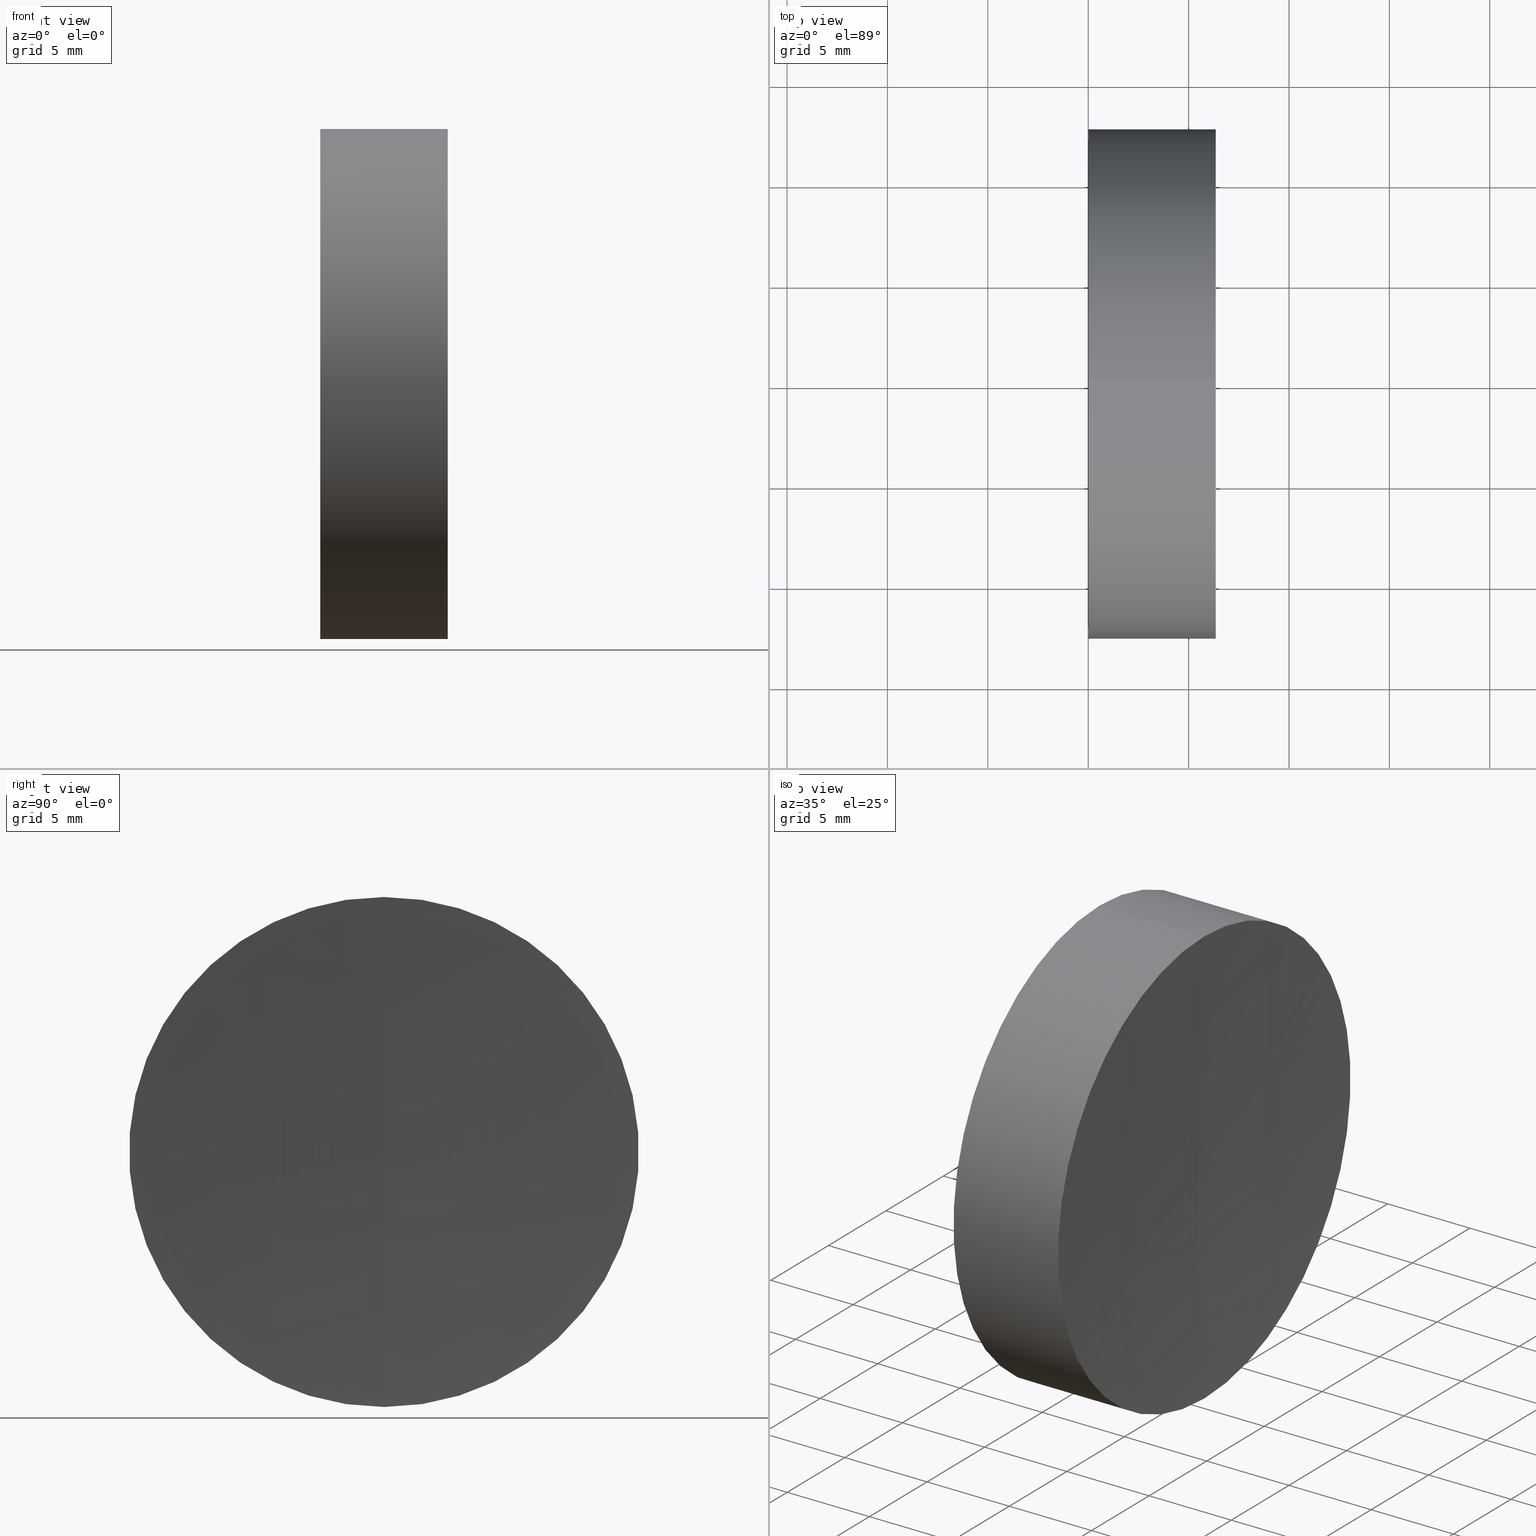
[diagram: canonical four-view strip — front | top / right | iso, engineering-drawing reading convention]
A machine part, canonical four-view strip (front | top / right | iso — engineering-drawing reading convention). The complete STEP part file that produces these views, byte-faithful:
ISO-10303-21;
HEADER;
FILE_DESCRIPTION (( 'STEP AP214' ),
    '1' );
FILE_NAME ('432517.STEP',
    '2019-08-27T01:21:50',
    ( 'user' ),
    ( '΢���й�' ),
    'SwSTEP 2.0',
    'SolidWorks 2016',
    '' );
FILE_SCHEMA (( 'AUTOMOTIVE_DESIGN' ));
ENDSEC;

DATA;
#1 = AXIS2_PLACEMENT_3D ( 'NONE', #150, #90, #9 ) ;
#2 = PRODUCT_DEFINITION ( 'δ֪', '', #55, #92 ) ;
#3 = CARTESIAN_POINT ( 'NONE',  ( 0.0000000000000000000, 0.0000000000000000000, 0.0000000000000000000 ) ) ;
#4 = CYLINDRICAL_SURFACE ( 'NONE', #127, 12.70000000000000300 ) ;
#5 = DIRECTION ( 'NONE',  ( 0.0000000000000000000, 0.0000000000000000000, 1.000000000000000000 ) ) ;
#6 =( NAMED_UNIT ( * ) SI_UNIT ( $, .STERADIAN. ) SOLID_ANGLE_UNIT ( ) );
#7 = ADVANCED_BREP_SHAPE_REPRESENTATION ( '432517', ( #65, #67 ), #130 ) ;
#8 = EDGE_CURVE ( 'NONE', #119, #27, #15, .T. ) ;
#9 = DIRECTION ( 'NONE',  ( 0.0000000000000000000, 0.0000000000000000000, 1.000000000000000000 ) ) ;
#10 = ORIENTED_EDGE ( 'NONE', *, *, #38, .T. ) ;
#11 = SPHERICAL_SURFACE ( 'NONE', #17, 200.0000000000000000 ) ;
#12 = LINE ( 'NONE', #123, #45 ) ;
#13 = EDGE_LOOP ( 'NONE', ( #49, #95, #39, #26 ) ) ;
#14 = FACE_OUTER_BOUND ( 'NONE', #84, .T. ) ;
#15 = CIRCLE ( 'NONE', #144, 200.0000000000000000 ) ;
#16 = EDGE_CURVE ( 'NONE', #64, #119, #147, .T. ) ;
#17 = AXIS2_PLACEMENT_3D ( 'NONE', #44, #85, #5 ) ;
#18 = DIRECTION ( 'NONE',  ( 0.0000000000000000000, 0.0000000000000000000, 1.000000000000000000 ) ) ;
#19 = CARTESIAN_POINT ( 'NONE',  ( 6.353632297579126000, 0.0000000000000000000, 0.0000000000000000000 ) ) ;
#20 = DIRECTION ( 'NONE',  ( -1.000000000000000000, -0.0000000000000000000, -0.0000000000000000000 ) ) ;
#21 = DIRECTION ( 'NONE',  ( 0.0000000000000000000, 0.0000000000000000000, 1.000000000000000000 ) ) ;
#22 =( LENGTH_UNIT ( ) NAMED_UNIT ( * ) SI_UNIT ( .MILLI., .METRE. ) );
#23 = CARTESIAN_POINT ( 'NONE',  ( 0.0000000000000000000, 0.0000000000000000000, 0.0000000000000000000 ) ) ;
#24 = SHAPE_DEFINITION_REPRESENTATION ( #163, #7 ) ;
#25 = EDGE_CURVE ( 'NONE', #64, #114, #41, .T. ) ;
#26 = ORIENTED_EDGE ( 'NONE', *, *, #42, .F. ) ;
#27 = VERTEX_POINT ( 'NONE', #81 ) ;
#28 = PRODUCT_RELATED_PRODUCT_CATEGORY ( 'part', '', ( #53 ) ) ;
#29 = STYLED_ITEM ( 'NONE', ( #135 ), #65 ) ;
#30 = CARTESIAN_POINT ( 'NONE',  ( 6.353632297579126000, 0.0000000000000000000, 0.0000000000000000000 ) ) ;
#31 = DIRECTION ( 'NONE',  ( 0.0000000000000000000, -1.224646799147353200E-016, 1.000000000000000000 ) ) ;
#32 = DIRECTION ( 'NONE',  ( -1.000000000000000000, -0.0000000000000000000, -0.0000000000000000000 ) ) ;
#33 = CARTESIAN_POINT ( 'NONE',  ( 6.353632297579126000, 1.555301434917142400E-015, -12.70000000000003100 ) ) ;
#34 = SURFACE_SIDE_STYLE ('',( #93 ) ) ;
#35 = CARTESIAN_POINT ( 'NONE',  ( 205.9500000000000200, 0.0000000000000000000, 0.0000000000000000000 ) ) ;
#36 = DIRECTION ( 'NONE',  ( 1.000000000000000000, 0.0000000000000000000, 0.0000000000000000000 ) ) ;
#37 = PRESENTATION_LAYER_ASSIGNMENT (  '', '', ( #152 ) ) ;
#38 = EDGE_CURVE ( 'NONE', #119, #64, #153, .T. ) ;
#39 = ORIENTED_EDGE ( 'NONE', *, *, #56, .T. ) ;
#40 = CIRCLE ( 'NONE', #120, 12.69999999999999900 ) ;
#41 = LINE ( 'NONE', #121, #110 ) ;
#42 = EDGE_CURVE ( 'NONE', #114, #97, #79, .T. ) ;
#43 = ORIENTED_EDGE ( 'NONE', *, *, #38, .F. ) ;
#44 = CARTESIAN_POINT ( 'NONE',  ( 205.9500000000000200, 0.0000000000000000000, 0.0000000000000000000 ) ) ;
#45 = VECTOR ( 'NONE', #108, 1000.000000000000000 ) ;
#46 = FILL_AREA_STYLE_COLOUR ( '', #117 ) ;
#47 = DIRECTION ( 'NONE',  ( 0.0000000000000000000, 0.0000000000000000000, 1.000000000000000000 ) ) ;
#48 = APPLICATION_CONTEXT ( 'automotive_design' ) ;
#49 = ORIENTED_EDGE ( 'NONE', *, *, #25, .F. ) ;
#50 = ADVANCED_FACE ( 'NONE', ( #77 ), #4, .T. ) ;
#51 = ORIENTED_EDGE ( 'NONE', *, *, #56, .F. ) ;
#52 = AXIS2_PLACEMENT_3D ( 'NONE', #72, #20, #157 ) ;
#53 = PRODUCT ( '432517', '432517', '', ( #148 ) ) ;
#54 = ORIENTED_EDGE ( 'NONE', *, *, #8, .T. ) ;
#55 = PRODUCT_DEFINITION_FORMATION_WITH_SPECIFIED_SOURCE ( '�κ�', '', #53, .NOT_KNOWN. ) ;
#56 = EDGE_CURVE ( 'NONE', #119, #97, #12, .T. ) ;
#57 = CARTESIAN_POINT ( 'NONE',  ( 0.0000000000000000000, 0.0000000000000000000, 12.69999999999999900 ) ) ;
#58 = ADVANCED_FACE ( 'NONE', ( #104 ), #140, .F. ) ;
#59 = APPLICATION_CONTEXT ( 'automotive_design' ) ;
#60 = APPLICATION_PROTOCOL_DEFINITION ( 'draft international standard', 'automotive_design', 1998, #48 ) ;
#61 = SURFACE_SIDE_STYLE ('',( #91 ) ) ;
#62 = MECHANICAL_DESIGN_GEOMETRIC_PRESENTATION_REPRESENTATION (  '', ( #29 ), #118 ) ;
#63 = AXIS2_PLACEMENT_3D ( 'NONE', #122, #36, #113 ) ;
#64 = VERTEX_POINT ( 'NONE', #33 ) ;
#65 = MANIFOLD_SOLID_BREP ( '��ת1', #105 ) ;
#66 = EDGE_CURVE ( 'NONE', #64, #27, #143, .T. ) ;
#67 = AXIS2_PLACEMENT_3D ( 'NONE', #23, #160, #71 ) ;
#68 = ORIENTED_EDGE ( 'NONE', *, *, #16, .F. ) ;
#69 = CARTESIAN_POINT ( 'NONE',  ( 6.353632297579126000, 0.0000000000000000000, 12.70000000000003100 ) ) ;
#70 = PLANE ( 'NONE',  #63 ) ;
#71 = DIRECTION ( 'NONE',  ( 1.000000000000000000, 0.0000000000000000000, 0.0000000000000000000 ) ) ;
#72 = CARTESIAN_POINT ( 'NONE',  ( 0.0000000000000000000, 0.0000000000000000000, 0.0000000000000000000 ) ) ;
#73 =( NAMED_UNIT ( * ) SI_UNIT ( $, .STERADIAN. ) SOLID_ANGLE_UNIT ( ) );
#74 = FILL_AREA_STYLE_COLOUR ( '', #166 ) ;
#75 = EDGE_LOOP ( 'NONE', ( #68, #80, #115 ) ) ;
#76 = EDGE_CURVE ( 'NONE', #97, #114, #40, .T. ) ;
#77 = FACE_OUTER_BOUND ( 'NONE', #141, .T. ) ;
#78 = ORIENTED_EDGE ( 'NONE', *, *, #42, .T. ) ;
#79 = CIRCLE ( 'NONE', #52, 12.69999999999999900 ) ;
#80 = ORIENTED_EDGE ( 'NONE', *, *, #66, .T. ) ;
#81 = CARTESIAN_POINT ( 'NONE',  ( 5.950000000000010800, 0.0000000000000000000, 1.224646799147353200E-014 ) ) ;
#82 = CYLINDRICAL_SURFACE ( 'NONE', #138, 12.70000000000000300 ) ;
#83 = DIRECTION ( 'NONE',  ( 0.0000000000000000000, 0.0000000000000000000, 1.000000000000000000 ) ) ;
#84 = EDGE_LOOP ( 'NONE', ( #103, #78 ) ) ;
#85 = DIRECTION ( 'NONE',  ( 0.0000000000000000000, 1.000000000000000000, 0.0000000000000000000 ) ) ;
#86 = CARTESIAN_POINT ( 'NONE',  ( 0.0000000000000000000, 0.0000000000000000000, 0.0000000000000000000 ) ) ;
#87 =( LENGTH_UNIT ( ) NAMED_UNIT ( * ) SI_UNIT ( .MILLI., .METRE. ) );
#88 =( LENGTH_UNIT ( ) NAMED_UNIT ( * ) SI_UNIT ( .MILLI., .METRE. ) );
#89 = UNCERTAINTY_MEASURE_WITH_UNIT (LENGTH_MEASURE( 1.000000000000000100E-005 ), #88, 'distance_accuracy_value', 'NONE');
#90 = DIRECTION ( 'NONE',  ( 0.0000000000000000000, 1.000000000000000000, 0.0000000000000000000 ) ) ;
#91 = SURFACE_STYLE_FILL_AREA ( #137 ) ;
#92 = PRODUCT_DEFINITION_CONTEXT ( 'detailed design', #59, 'design' ) ;
#93 = SURFACE_STYLE_FILL_AREA ( #125 ) ;
#94 =( GEOMETRIC_REPRESENTATION_CONTEXT ( 3 ) GLOBAL_UNCERTAINTY_ASSIGNED_CONTEXT ( ( #131 ) ) GLOBAL_UNIT_ASSIGNED_CONTEXT ( ( #22, #99, #6 ) ) REPRESENTATION_CONTEXT ( 'NONE', 'WORKASPACE' ) );
#95 = ORIENTED_EDGE ( 'NONE', *, *, #16, .T. ) ;
#96 = DIRECTION ( 'NONE',  ( -1.000000000000000000, -0.0000000000000000000, -0.0000000000000000000 ) ) ;
#97 = VERTEX_POINT ( 'NONE', #57 ) ;
#98 = ADVANCED_FACE ( 'NONE', ( #142 ), #11, .F. ) ;
#99 =( NAMED_UNIT ( * ) PLANE_ANGLE_UNIT ( ) SI_UNIT ( $, .RADIAN. ) );
#100 =( NAMED_UNIT ( * ) SI_UNIT ( $, .STERADIAN. ) SOLID_ANGLE_UNIT ( ) );
#101 = ADVANCED_FACE ( 'NONE', ( #146 ), #82, .T. ) ;
#102 = MECHANICAL_DESIGN_GEOMETRIC_PRESENTATION_REPRESENTATION (  '', ( #152 ), #94 ) ;
#103 = ORIENTED_EDGE ( 'NONE', *, *, #76, .T. ) ;
#104 = FACE_OUTER_BOUND ( 'NONE', #75, .T. ) ;
#105 = CLOSED_SHELL ( 'NONE', ( #50, #58, #158, #98, #101 ) ) ;
#106 = DIRECTION ( 'NONE',  ( -1.000000000000000000, -0.0000000000000000000, -0.0000000000000000000 ) ) ;
#107 = AXIS2_PLACEMENT_3D ( 'NONE', #149, #136, #31 ) ;
#108 = DIRECTION ( 'NONE',  ( -1.000000000000000000, -0.0000000000000000000, -0.0000000000000000000 ) ) ;
#109 = DIRECTION ( 'NONE',  ( 0.0000000000000000000, -1.000000000000000000, 0.0000000000000000000 ) ) ;
#110 = VECTOR ( 'NONE', #156, 1000.000000000000000 ) ;
#111 = CARTESIAN_POINT ( 'NONE',  ( 0.0000000000000000000, 0.0000000000000000000, 0.0000000000000000000 ) ) ;
#112 = SURFACE_STYLE_USAGE ( .BOTH. , #34 ) ;
#113 = DIRECTION ( 'NONE',  ( 0.0000000000000000000, 0.0000000000000000000, -1.000000000000000000 ) ) ;
#114 = VERTEX_POINT ( 'NONE', #133 ) ;
#115 = ORIENTED_EDGE ( 'NONE', *, *, #8, .F. ) ;
#116 = UNCERTAINTY_MEASURE_WITH_UNIT (LENGTH_MEASURE( 1.000000000000000100E-005 ), #87, 'distance_accuracy_value', 'NONE');
#117 = COLOUR_RGB ( '',1.000000000000000000, 1.000000000000000000, 1.000000000000000000 ) ;
#118 =( GEOMETRIC_REPRESENTATION_CONTEXT ( 3 ) GLOBAL_UNCERTAINTY_ASSIGNED_CONTEXT ( ( #116 ) ) GLOBAL_UNIT_ASSIGNED_CONTEXT ( ( #87, #126, #100 ) ) REPRESENTATION_CONTEXT ( 'NONE', 'WORKASPACE' ) );
#119 = VERTEX_POINT ( 'NONE', #69 ) ;
#120 = AXIS2_PLACEMENT_3D ( 'NONE', #111, #32, #21 ) ;
#121 = CARTESIAN_POINT ( 'NONE',  ( 0.0000000000000000000, 1.555301434917138800E-015, -12.70000000000000300 ) ) ;
#122 = CARTESIAN_POINT ( 'NONE',  ( 0.0000000000000000000, 0.0000000000000000000, 0.0000000000000000000 ) ) ;
#123 = CARTESIAN_POINT ( 'NONE',  ( 0.0000000000000000000, 0.0000000000000000000, 12.70000000000000300 ) ) ;
#124 = DIRECTION ( 'NONE',  ( -1.000000000000000000, -0.0000000000000000000, -0.0000000000000000000 ) ) ;
#125 = FILL_AREA_STYLE ('',( #46 ) ) ;
#126 =( NAMED_UNIT ( * ) PLANE_ANGLE_UNIT ( ) SI_UNIT ( $, .RADIAN. ) );
#127 = AXIS2_PLACEMENT_3D ( 'NONE', #3, #96, #155 ) ;
#128 = AXIS2_PLACEMENT_3D ( 'NONE', #30, #106, #18 ) ;
#129 = EDGE_LOOP ( 'NONE', ( #165, #43, #54 ) ) ;
#130 =( GEOMETRIC_REPRESENTATION_CONTEXT ( 3 ) GLOBAL_UNCERTAINTY_ASSIGNED_CONTEXT ( ( #89 ) ) GLOBAL_UNIT_ASSIGNED_CONTEXT ( ( #88, #162, #73 ) ) REPRESENTATION_CONTEXT ( 'NONE', 'WORKASPACE' ) );
#131 = UNCERTAINTY_MEASURE_WITH_UNIT (LENGTH_MEASURE( 1.000000000000000100E-005 ), #22, 'distance_accuracy_value', 'NONE');
#132 = DIRECTION ( 'NONE',  ( 0.0000000000000000000, 0.0000000000000000000, -1.000000000000000000 ) ) ;
#133 = CARTESIAN_POINT ( 'NONE',  ( 0.0000000000000000000, 1.555301434917138600E-015, -12.69999999999999900 ) ) ;
#134 = APPLICATION_PROTOCOL_DEFINITION ( 'draft international standard', 'automotive_design', 1998, #59 ) ;
#135 = PRESENTATION_STYLE_ASSIGNMENT (( #161 ) ) ;
#136 = DIRECTION ( 'NONE',  ( -0.0000000000000000000, 1.000000000000000000, 1.224646799147353200E-016 ) ) ;
#137 = FILL_AREA_STYLE ('',( #74 ) ) ;
#138 = AXIS2_PLACEMENT_3D ( 'NONE', #86, #159, #47 ) ;
#139 = ORIENTED_EDGE ( 'NONE', *, *, #76, .F. ) ;
#140 = SPHERICAL_SURFACE ( 'NONE', #1, 200.0000000000000000 ) ;
#141 = EDGE_LOOP ( 'NONE', ( #10, #145, #139, #51 ) ) ;
#142 = FACE_OUTER_BOUND ( 'NONE', #129, .T. ) ;
#143 = CIRCLE ( 'NONE', #107, 200.0000000000000000 ) ;
#144 = AXIS2_PLACEMENT_3D ( 'NONE', #35, #109, #132 ) ;
#145 = ORIENTED_EDGE ( 'NONE', *, *, #25, .T. ) ;
#146 = FACE_OUTER_BOUND ( 'NONE', #13, .T. ) ;
#147 = CIRCLE ( 'NONE', #128, 12.70000000000000600 ) ;
#148 = PRODUCT_CONTEXT ( 'NONE', #48, 'mechanical' ) ;
#149 = CARTESIAN_POINT ( 'NONE',  ( 205.9500000000000200, 0.0000000000000000000, 0.0000000000000000000 ) ) ;
#150 = CARTESIAN_POINT ( 'NONE',  ( 205.9500000000000200, 0.0000000000000000000, 0.0000000000000000000 ) ) ;
#151 = PRESENTATION_LAYER_ASSIGNMENT (  '', '', ( #29 ) ) ;
#152 = STYLED_ITEM ( 'NONE', ( #154 ), #7 ) ;
#153 = CIRCLE ( 'NONE', #164, 12.70000000000000600 ) ;
#154 = PRESENTATION_STYLE_ASSIGNMENT (( #112 ) ) ;
#155 = DIRECTION ( 'NONE',  ( 0.0000000000000000000, 0.0000000000000000000, 1.000000000000000000 ) ) ;
#156 = DIRECTION ( 'NONE',  ( -1.000000000000000000, -0.0000000000000000000, -0.0000000000000000000 ) ) ;
#157 = DIRECTION ( 'NONE',  ( 0.0000000000000000000, 0.0000000000000000000, 1.000000000000000000 ) ) ;
#158 = ADVANCED_FACE ( 'NONE', ( #14 ), #70, .F. ) ;
#159 = DIRECTION ( 'NONE',  ( -1.000000000000000000, -0.0000000000000000000, -0.0000000000000000000 ) ) ;
#160 = DIRECTION ( 'NONE',  ( 0.0000000000000000000, 0.0000000000000000000, 1.000000000000000000 ) ) ;
#161 = SURFACE_STYLE_USAGE ( .BOTH. , #61 ) ;
#162 =( NAMED_UNIT ( * ) PLANE_ANGLE_UNIT ( ) SI_UNIT ( $, .RADIAN. ) );
#163 = PRODUCT_DEFINITION_SHAPE ( 'NONE', 'NONE',  #2 ) ;
#164 = AXIS2_PLACEMENT_3D ( 'NONE', #19, #124, #83 ) ;
#165 = ORIENTED_EDGE ( 'NONE', *, *, #66, .F. ) ;
#166 = COLOUR_RGB ( '',1.000000000000000000, 1.000000000000000000, 1.000000000000000000 ) ;
ENDSEC;
END-ISO-10303-21;
